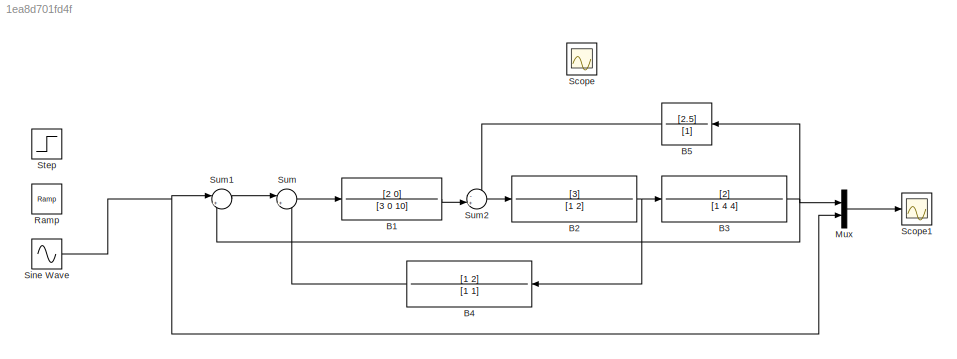
MODEL slx_1ea8d701fd4f
KIND model
CONFIG AbsTol = auto
CONFIG EnableMultiTasking = off
CONFIG FixedStep = auto
CONFIG MaxStep = auto
CONFIG MinStep = auto
CONFIG RelTol = 1e-3
CONFIG SampleTimeConstraint = Unconstrained
CONFIG SolverName = VariableStepAuto
CONFIG StartTime = 0.0
CONFIG StopTime = 10.0
BLOCK [TransferFcn] B1
  Denominator = [3 0 10]
  Numerator = [2 0]
BLOCK [TransferFcn] B2
  Denominator = [1 2]
  Numerator = [3]
BLOCK [TransferFcn] B3
  Denominator = [1 4 4]
  Numerator = [2]
BLOCK [TransferFcn] B4
  Denominator = [1 1]
  NameLocation = top
  Numerator = [1 2]
BLOCK [TransferFcn] B5
  Denominator = [1]
  NameLocation = top
  Numerator = [2.5]
BLOCK [Mux] Mux
  DisplayOption = bar
  Inputs = 2
BLOCK [Reference] Ramp  REF=simulink/Sources/Ramp
  SourceBlock = simulink/Sources/Ramp
  SourceType = Ramp
BLOCK [Scope] Scope
  Floating = off
  IOType = viewer
  NumInputPorts = 1
  ScopeSpecificationString = Simulink.scopes.TimeScopeBlockCfg('CurrentConfiguration', extmgr.ConfigurationSet(extmgr.Configuration('Core','General UI',true),extmgr.Configuration('Core','Source UI',true),extmgr.Configuration('Sources','WiredSimulink',true),extmgr.Configuration('Visuals','Time Domain',true,'SerializedDisplays',{struct('MinYLimReal','-7.96675','MaxYLimReal','13.90038','YLabelReal','','MinYLimMag','0.00000','Max...<+1415ch>
BLOCK [Scope] Scope1
  Floating = off
  NumInputPorts = 1
  ScopeSpecificationString = Simulink.scopes.TimeScopeBlockCfg('CurrentConfiguration', extmgr.ConfigurationSet(extmgr.Configuration('Core','General UI',true),extmgr.Configuration('Core','Source UI',true),extmgr.Configuration('Sources','WiredSimulink',true,'DataLoggingVariableName','ScopeData1'),extmgr.Configuration('Visuals','Time Domain',true,'SerializedDisplays',{struct('MinYLimReal','-1.71341','MaxYLimReal','2.98914','YLab...<+1536ch>
BLOCK [Sin] Sine Wave
  SampleTime = 0
BLOCK [Step] Step
  SampleTime = 0
BLOCK [Sum] Sum
  Inputs = |++
BLOCK [Sum] Sum1
  Inputs = |+-
BLOCK [Sum] Sum2
  Inputs = -+|
  NameLocation = top
LINE B1:1 -> Sum2:2
NET B2:1 -> B3:1, B4:1
NET B3:1 -> B5:1, Mux:1, Sum1:2
LINE B4:1 -> Sum:2
LINE B5:1 -> Sum2:1
LINE Mux:1 -> Scope1:1
NET Sine Wave:1 -> Mux:2, Sum1:1
LINE Sum1:1 -> Sum:1
LINE Sum2:1 -> B2:1
LINE Sum:1 -> B1:1
note: NET lines group one-source signal fan-out (src -> all destinations, sorted); 1:1 wires keep LINE
